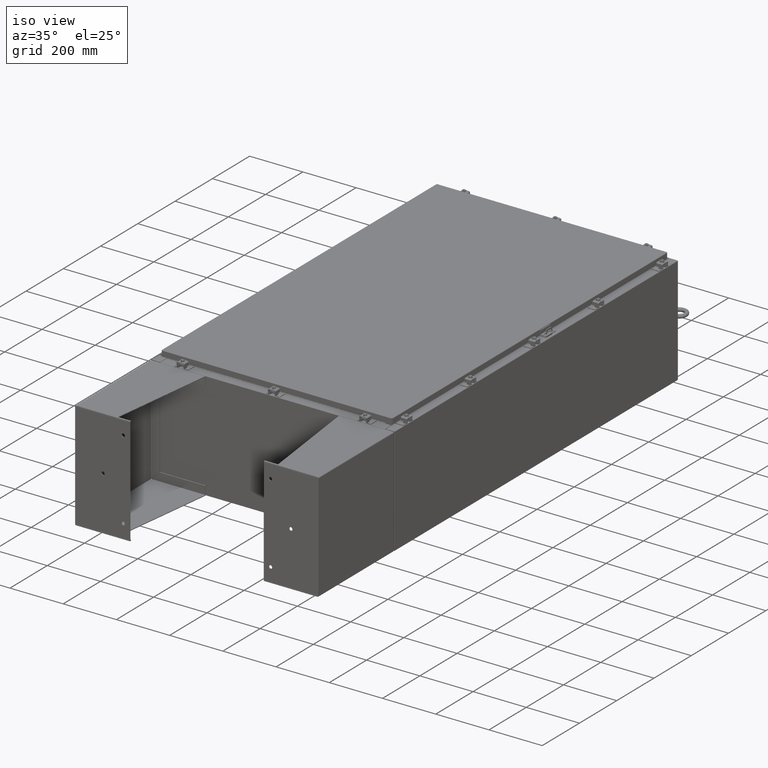
[diagram: clean part render]
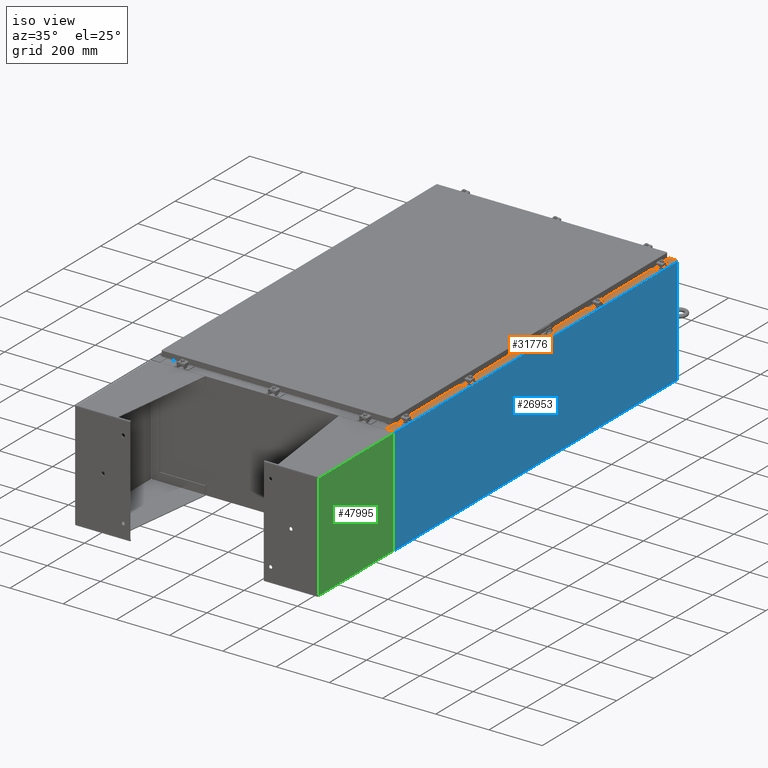
[diagram: same view with three faces highlighted in distinct colors, each labeled with its STEP entity id]
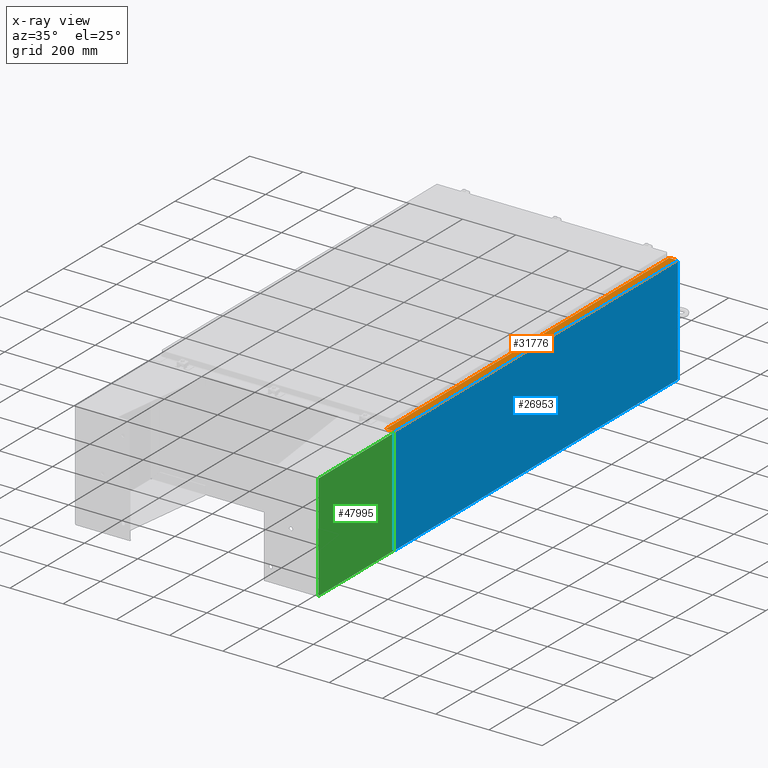
[diagram: x-ray of the same camera — body ghosted, the three highlighted faces saturated]
A machine part, iso view with three faces highlighted in distinct colors.
The next image is the same camera in x-ray (body ghosted, the three faces saturated) — at least one of them is partly hidden behind the body in this view.
Their STEP definitions:

[orange] entity #31776 — the highlighted planar face has unit normal (-0, -0, -1).
#130 = EDGE_CURVE ( 'NONE', #24378, #47018, #66243, .T. ) ;
#217 = CARTESIAN_POINT ( 'NONE',  ( 16.75005000000005500, 28.59374999999996800, 15.92530000000000500 ) ) ;
#399 = DIRECTION ( 'NONE',  ( 1.000000000000000000, 0.0000000000000000000, 0.0000000000000000000 ) ) ;
#725 = AXIS2_PLACEMENT_3D ( 'NONE', #37675, #46185, #10859 ) ;
#1506 = EDGE_CURVE ( 'NONE', #15011, #4619, #30651, .T. ) ;
#1755 = EDGE_CURVE ( 'NONE', #8646, #22863, #57858, .T. ) ;
#1946 = LINE ( 'NONE', #7747, #56029 ) ;
#2578 = CARTESIAN_POINT ( 'NONE',  ( 16.69970000000005300, -28.63110000000000700, 15.92530000000000500 ) ) ;
#2807 = EDGE_CURVE ( 'NONE', #44078, #8646, #24848, .T. ) ;
#4619 = VERTEX_POINT ( 'NONE', #46013 ) ;
#4620 = VECTOR ( 'NONE', #25521, 39.37007874015748100 ) ;
#4806 = ORIENTED_EDGE ( 'NONE', *, *, #130, .T. ) ;
#4869 = ORIENTED_EDGE ( 'NONE', *, *, #42134, .F. ) ;
#5190 = VERTEX_POINT ( 'NONE', #35418 ) ;
#6358 = CARTESIAN_POINT ( 'NONE',  ( 16.69970000000005300, 5.815213060988728800E-016, 15.92530000000000500 ) ) ;
#7747 = CARTESIAN_POINT ( 'NONE',  ( 17.91230000000005200, -29.92530000000001100, 15.92530000000000200 ) ) ;
#7956 = AXIS2_PLACEMENT_3D ( 'NONE', #63132, #31534, #399 ) ;
#8646 = VERTEX_POINT ( 'NONE', #39049 ) ;
#8961 = VECTOR ( 'NONE', #66947, 39.37007874015748100 ) ;
#9799 = LINE ( 'NONE', #6358, #63888 ) ;
#9889 = EDGE_CURVE ( 'NONE', #5190, #4619, #13994, .T. ) ;
#10638 = LINE ( 'NONE', #14634, #8961 ) ;
#10708 = DIRECTION ( 'NONE',  ( 0.0000000000000000000, -1.000000000000000000, 3.651556366905946600E-017 ) ) ;
#10859 = DIRECTION ( 'NONE',  ( 1.000000000000000000, 0.0000000000000000000, 0.0000000000000000000 ) ) ;
#12793 = ORIENTED_EDGE ( 'NONE', *, *, #1755, .F. ) ;
#13994 = LINE ( 'NONE', #53405, #26127 ) ;
#14634 = CARTESIAN_POINT ( 'NONE',  ( 16.75005000000005500, -28.59375000000001100, 15.92530000000000500 ) ) ;
#15011 = VERTEX_POINT ( 'NONE', #36234 ) ;
#16230 = CARTESIAN_POINT ( 'NONE',  ( 16.71270000000005500, -28.59375000000001100, 15.92530000000000500 ) ) ;
#17654 = CIRCLE ( 'NONE', #7956, 0.01867499999999949400 ) ;
#18477 = EDGE_CURVE ( 'NONE', #22863, #15011, #63248, .T. ) ;
#20433 = DIRECTION ( 'NONE',  ( 1.000000000000000000, 0.0000000000000000000, 0.0000000000000000000 ) ) ;
#21501 = EDGE_CURVE ( 'NONE', #38966, #32499, #35583, .T. ) ;
#21824 = LINE ( 'NONE', #52958, #48099 ) ;
#21907 = ORIENTED_EDGE ( 'NONE', *, *, #21501, .F. ) ;
#22863 = VERTEX_POINT ( 'NONE', #217 ) ;
#24378 = VERTEX_POINT ( 'NONE', #61593 ) ;
#24848 = LINE ( 'NONE', #58001, #29716 ) ;
#25521 = DIRECTION ( 'NONE',  ( -1.000000000000000000, 0.0000000000000000000, 0.0000000000000000000 ) ) ;
#26127 = VECTOR ( 'NONE', #10708, 39.37007874015748100 ) ;
#26750 = DIRECTION ( 'NONE',  ( -1.000000000000000000, 2.430865342914509000E-063, 5.349571789159789300E-015 ) ) ;
#29716 = VECTOR ( 'NONE', #61600, 39.37007874015748100 ) ;
#29761 = CARTESIAN_POINT ( 'NONE',  ( 17.91230000000005200, 29.92529999999999300, 15.92530000000000000 ) ) ;
#30229 = EDGE_LOOP ( 'NONE', ( #21907, #42857, #4806, #45995, #30779, #35106, #42465, #62025, #12793, #59959, #48576, #4869 ) ) ;
#30422 = PLANE ( 'NONE',  #34033 ) ;
#30494 = VERTEX_POINT ( 'NONE', #42284 ) ;
#30651 = LINE ( 'NONE', #34828, #4620 ) ;
#30779 = ORIENTED_EDGE ( 'NONE', *, *, #55361, .T. ) ;
#30890 = FACE_OUTER_BOUND ( 'NONE', #30229, .T. ) ;
#31534 = DIRECTION ( 'NONE',  ( 5.349571789159788500E-015, 3.651556366905946600E-017, 1.000000000000000000 ) ) ;
#31776 = ADVANCED_FACE ( 'NONE', ( #30890 ), #30422, .F. ) ;
#32499 = VERTEX_POINT ( 'NONE', #67377 ) ;
#33944 = VECTOR ( 'NONE', #20433, 39.37007874015748100 ) ;
#34033 = AXIS2_PLACEMENT_3D ( 'NONE', #61977, #67220, #35688 ) ;
#34811 = CARTESIAN_POINT ( 'NONE',  ( 16.69970000000005300, -28.63110000000000700, 15.92530000000000500 ) ) ;
#34828 = CARTESIAN_POINT ( 'NONE',  ( 16.75005000000005500, 28.63109999999996800, 15.92530000000000500 ) ) ;
#35106 = ORIENTED_EDGE ( 'NONE', *, *, #9889, .T. ) ;
#35281 = CARTESIAN_POINT ( 'NONE',  ( 16.71270000000005500, 28.59374999999996800, 15.92530000000000500 ) ) ;
#35418 = CARTESIAN_POINT ( 'NONE',  ( 16.69970000000005300, 29.92529999999999300, 15.92530000000000500 ) ) ;
#35583 = LINE ( 'NONE', #2578, #33944 ) ;
#35688 = DIRECTION ( 'NONE',  ( -1.000000000000000000, 0.0000000000000000000, 5.349571789159788500E-015 ) ) ;
#36234 = CARTESIAN_POINT ( 'NONE',  ( 16.75005000000005500, 28.63109999999996800, 15.92530000000000500 ) ) ;
#37675 = CARTESIAN_POINT ( 'NONE',  ( 16.75005000000005500, 28.61242499999997000, 15.92530000000000500 ) ) ;
#38966 = VERTEX_POINT ( 'NONE', #34811 ) ;
#39049 = CARTESIAN_POINT ( 'NONE',  ( 16.71270000000005500, 28.59374999999996800, 15.92530000000000500 ) ) ;
#39220 = DIRECTION ( 'NONE',  ( 3.651556366905947300E-017, -1.000000000000000000, 3.651556366905926900E-017 ) ) ;
#39396 = EDGE_CURVE ( 'NONE', #38966, #24378, #9799, .T. ) ;
#39690 = EDGE_CURVE ( 'NONE', #30494, #44078, #10638, .T. ) ;
#42134 = EDGE_CURVE ( 'NONE', #32499, #30494, #17654, .T. ) ;
#42284 = CARTESIAN_POINT ( 'NONE',  ( 16.75005000000005500, -28.59375000000001100, 15.92530000000000500 ) ) ;
#42465 = ORIENTED_EDGE ( 'NONE', *, *, #1506, .F. ) ;
#42857 = ORIENTED_EDGE ( 'NONE', *, *, #39396, .T. ) ;
#42896 = DIRECTION ( 'NONE',  ( 0.0000000000000000000, -1.000000000000000000, 3.651556366905946600E-017 ) ) ;
#44078 = VERTEX_POINT ( 'NONE', #16230 ) ;
#45995 = ORIENTED_EDGE ( 'NONE', *, *, #61992, .F. ) ;
#46013 = CARTESIAN_POINT ( 'NONE',  ( 16.69970000000005300, 28.63109999999997200, 15.92530000000000500 ) ) ;
#46185 = DIRECTION ( 'NONE',  ( 5.349571789159788500E-015, 3.651556366905946600E-017, 1.000000000000000000 ) ) ;
#47018 = VERTEX_POINT ( 'NONE', #57943 ) ;
#48099 = VECTOR ( 'NONE', #26750, 39.37007874015748100 ) ;
#48576 = ORIENTED_EDGE ( 'NONE', *, *, #39690, .F. ) ;
#52346 = VECTOR ( 'NONE', #66678, 39.37007874015748100 ) ;
#52958 = CARTESIAN_POINT ( 'NONE',  ( 8.545434926991848800E-014, 29.92529999999999300, 15.92530000000009600 ) ) ;
#53405 = CARTESIAN_POINT ( 'NONE',  ( 16.69970000000005300, 5.815213060988728800E-016, 15.92530000000000500 ) ) ;
#55361 = EDGE_CURVE ( 'NONE', #65394, #5190, #21824, .T. ) ;
#56029 = VECTOR ( 'NONE', #39220, 39.37007874015748100 ) ;
#56221 = VECTOR ( 'NONE', #66573, 39.37007874015748100 ) ;
#57858 = LINE ( 'NONE', #35281, #56221 ) ;
#57943 = CARTESIAN_POINT ( 'NONE',  ( 17.91230000000005200, -29.92530000000001100, 15.92530000000000200 ) ) ;
#58001 = CARTESIAN_POINT ( 'NONE',  ( 16.71270000000005500, -28.59375000000000400, 15.92530000000000500 ) ) ;
#59959 = ORIENTED_EDGE ( 'NONE', *, *, #2807, .F. ) ;
#60712 = CARTESIAN_POINT ( 'NONE',  ( 8.545434926991848800E-014, -29.92530000000001100, 15.92530000000009800 ) ) ;
#61593 = CARTESIAN_POINT ( 'NONE',  ( 16.69970000000005300, -29.92530000000001100, 15.92530000000000900 ) ) ;
#61600 = DIRECTION ( 'NONE',  ( -0.0000000000000000000, 1.000000000000000000, -0.0000000000000000000 ) ) ;
#61977 = CARTESIAN_POINT ( 'NONE',  ( 8.545434926991848800E-014, 5.815213060988761300E-016, 15.92530000000009600 ) ) ;
#61992 = EDGE_CURVE ( 'NONE', #65394, #47018, #1946, .T. ) ;
#62025 = ORIENTED_EDGE ( 'NONE', *, *, #18477, .F. ) ;
#63132 = CARTESIAN_POINT ( 'NONE',  ( 16.75005000000005500, -28.61242500000000900, 15.92530000000000500 ) ) ;
#63248 = CIRCLE ( 'NONE', #725, 0.01867499999999949400 ) ;
#63888 = VECTOR ( 'NONE', #42896, 39.37007874015748100 ) ;
#65394 = VERTEX_POINT ( 'NONE', #29761 ) ;
#66243 = LINE ( 'NONE', #60712, #52346 ) ;
#66573 = DIRECTION ( 'NONE',  ( 1.000000000000000000, 0.0000000000000000000, 0.0000000000000000000 ) ) ;
#66678 = DIRECTION ( 'NONE',  ( 1.000000000000000000, -2.430865342914509000E-063, -5.349571789159789300E-015 ) ) ;
#66947 = DIRECTION ( 'NONE',  ( -1.000000000000000000, 0.0000000000000000000, 0.0000000000000000000 ) ) ;
#67220 = DIRECTION ( 'NONE',  ( -5.349571789159788500E-015, -3.651556366905946600E-017, -1.000000000000000000 ) ) ;
#67377 = CARTESIAN_POINT ( 'NONE',  ( 16.75005000000005500, -28.63110000000000700, 15.92530000000000500 ) ) ;

[blue] entity #26953 — the highlighted planar face has unit normal (-1, 0, 0).
#941 = CARTESIAN_POINT ( 'NONE',  ( 17.99999999999999600, -29.92530000000001100, -6.201571169367082000E-014 ) ) ;
#6960 = FACE_OUTER_BOUND ( 'NONE', #11927, .T. ) ;
#8297 = DIRECTION ( 'NONE',  ( -1.000000000000000000, 0.0000000000000000000, 3.430827668758846700E-015 ) ) ;
#11927 = EDGE_LOOP ( 'NONE', ( #13271, #26413, #50434, #41435 ) ) ;
#12442 = LINE ( 'NONE', #63257, #38502 ) ;
#12884 = CARTESIAN_POINT ( 'NONE',  ( 17.99999999999999600, 29.92529999999999300, 0.01299999999999984700 ) ) ;
#13271 = ORIENTED_EDGE ( 'NONE', *, *, #42096, .T. ) ;
#13944 = VERTEX_POINT ( 'NONE', #39937 ) ;
#14542 = CARTESIAN_POINT ( 'NONE',  ( 18.00000000000005300, -29.92530000000001100, 15.83760000000000200 ) ) ;
#15851 = CARTESIAN_POINT ( 'NONE',  ( 17.99999999999999600, -29.92530000000001100, 0.01299999999999984700 ) ) ;
#16078 = DIRECTION ( 'NONE',  ( -0.0000000000000000000, -1.000000000000000000, -0.0000000000000000000 ) ) ;
#19049 = DIRECTION ( 'NONE',  ( -0.0000000000000000000, -1.000000000000000000, -0.0000000000000000000 ) ) ;
#26413 = ORIENTED_EDGE ( 'NONE', *, *, #38743, .T. ) ;
#26953 = ADVANCED_FACE ( 'NONE', ( #6960 ), #34217, .F. ) ;
#28744 = CARTESIAN_POINT ( 'NONE',  ( 17.99999999999999600, 0.0000000000000000000, -6.201571169367082000E-014 ) ) ;
#31575 = VERTEX_POINT ( 'NONE', #44547 ) ;
#32700 = LINE ( 'NONE', #15851, #59120 ) ;
#34217 = PLANE ( 'NONE',  #59900 ) ;
#34664 = VECTOR ( 'NONE', #19049, 39.37007874015748100 ) ;
#34679 = CARTESIAN_POINT ( 'NONE',  ( 18.00000000000005000, 29.92529999999999300, 15.83760000000000200 ) ) ;
#35097 = VECTOR ( 'NONE', #58640, 39.37007874015748100 ) ;
#38502 = VECTOR ( 'NONE', #52940, 39.37007874015748100 ) ;
#38743 = EDGE_CURVE ( 'NONE', #56008, #13944, #49233, .T. ) ;
#39937 = CARTESIAN_POINT ( 'NONE',  ( 17.99999999999999600, -29.92530000000001100, 0.01299999999999984800 ) ) ;
#41435 = ORIENTED_EDGE ( 'NONE', *, *, #66285, .T. ) ;
#42096 = EDGE_CURVE ( 'NONE', #31575, #56008, #50409, .T. ) ;
#44547 = CARTESIAN_POINT ( 'NONE',  ( 18.00000000000005000, 29.92529999999999300, 15.83760000000000200 ) ) ;
#44855 = DIRECTION ( 'NONE',  ( 3.430827668758846700E-015, 0.0000000000000000000, 1.000000000000000000 ) ) ;
#49233 = LINE ( 'NONE', #941, #35097 ) ;
#50409 = LINE ( 'NONE', #34679, #34664 ) ;
#50434 = ORIENTED_EDGE ( 'NONE', *, *, #63249, .F. ) ;
#50916 = VERTEX_POINT ( 'NONE', #12884 ) ;
#52940 = DIRECTION ( 'NONE',  ( 3.430827668758847500E-015, 0.0000000000000000000, 1.000000000000000000 ) ) ;
#56008 = VERTEX_POINT ( 'NONE', #14542 ) ;
#58640 = DIRECTION ( 'NONE',  ( -3.430827668758847500E-015, 0.0000000000000000000, -1.000000000000000000 ) ) ;
#59120 = VECTOR ( 'NONE', #16078, 39.37007874015748100 ) ;
#59900 = AXIS2_PLACEMENT_3D ( 'NONE', #28744, #8297, #44855 ) ;
#63249 = EDGE_CURVE ( 'NONE', #50916, #13944, #32700, .T. ) ;
#63257 = CARTESIAN_POINT ( 'NONE',  ( 17.99999999999999600, 29.92529999999998900, -6.201571169367082000E-014 ) ) ;
#66285 = EDGE_CURVE ( 'NONE', #50916, #31575, #12442, .T. ) ;

[green] entity #47995 — the highlighted planar face has unit normal (1, 0, -0).
#7666 = CARTESIAN_POINT ( 'NONE',  ( -7.856999999999997500, -7.999999999999999100, -0.1039999999999998600 ) ) ;
#8596 = AXIS2_PLACEMENT_3D ( 'NONE', #24523, #61229, #29723 ) ;
#8881 = VECTOR ( 'NONE', #49566, 39.37007874015748100 ) ;
#8975 = VERTEX_POINT ( 'NONE', #26110 ) ;
#9901 = DIRECTION ( 'NONE',  ( -0.0000000000000000000, -1.000000000000000000, -0.0000000000000000000 ) ) ;
#10757 = VERTEX_POINT ( 'NONE', #16793 ) ;
#10939 = DIRECTION ( 'NONE',  ( 1.000000000000000000, 0.0000000000000000000, 0.0000000000000000000 ) ) ;
#13052 = CARTESIAN_POINT ( 'NONE',  ( -7.856999999999997500, 7.856999999999998400, -0.1039999999999999000 ) ) ;
#13135 = EDGE_CURVE ( 'NONE', #10757, #8975, #54628, .T. ) ;
#14482 = DIRECTION ( 'NONE',  ( 1.000000000000000000, 0.0000000000000000000, 0.0000000000000000000 ) ) ;
#14650 = LINE ( 'NONE', #47530, #28374 ) ;
#16793 = CARTESIAN_POINT ( 'NONE',  ( 7.857000000000001100, 7.857000000000001100, -0.1039999999999998600 ) ) ;
#18636 = VERTEX_POINT ( 'NONE', #33433 ) ;
#22721 = ORIENTED_EDGE ( 'NONE', *, *, #13135, .T. ) ;
#24373 = EDGE_CURVE ( 'NONE', #49272, #10757, #60549, .T. ) ;
#24523 = CARTESIAN_POINT ( 'NONE',  ( 8.000000000000001800, 8.000000000000001800, -0.1039999999999999800 ) ) ;
#24986 = ORIENTED_EDGE ( 'NONE', *, *, #54686, .F. ) ;
#26110 = CARTESIAN_POINT ( 'NONE',  ( 7.857000000000001100, -7.999999999999989300, -0.1039999999999998600 ) ) ;
#27175 = EDGE_LOOP ( 'NONE', ( #67712, #56922, #22721, #24986 ) ) ;
#28374 = VECTOR ( 'NONE', #10939, 39.37007874015748100 ) ;
#29723 = DIRECTION ( 'NONE',  ( -1.000000000000000000, 0.0000000000000000000, -0.0000000000000000000 ) ) ;
#33433 = CARTESIAN_POINT ( 'NONE',  ( -7.856999999999997500, -8.000000000000000000, -0.1039999999999998600 ) ) ;
#40126 = EDGE_CURVE ( 'NONE', #18636, #49272, #50674, .T. ) ;
#43279 = VECTOR ( 'NONE', #14482, 39.37007874015748100 ) ;
#47530 = CARTESIAN_POINT ( 'NONE',  ( -7.999999999999997300, -7.999999999999999100, -0.1039999999999999800 ) ) ;
#47995 = ADVANCED_FACE ( 'NONE', ( #63055 ), #55993, .T. ) ;
#49272 = VERTEX_POINT ( 'NONE', #13052 ) ;
#49566 = DIRECTION ( 'NONE',  ( -0.0000000000000000000, 1.000000000000000000, -0.0000000000000000000 ) ) ;
#50674 = LINE ( 'NONE', #7666, #8881 ) ;
#52972 = VECTOR ( 'NONE', #9901, 39.37007874015748100 ) ;
#54628 = LINE ( 'NONE', #62937, #52972 ) ;
#54686 = EDGE_CURVE ( 'NONE', #18636, #8975, #14650, .T. ) ;
#55993 = PLANE ( 'NONE',  #8596 ) ;
#56922 = ORIENTED_EDGE ( 'NONE', *, *, #24373, .T. ) ;
#60549 = LINE ( 'NONE', #66821, #43279 ) ;
#61229 = DIRECTION ( 'NONE',  ( 0.0000000000000000000, 0.0000000000000000000, -1.000000000000000000 ) ) ;
#62937 = CARTESIAN_POINT ( 'NONE',  ( 7.857000000000001100, 8.000000000000001800, -0.1039999999999998600 ) ) ;
#63055 = FACE_OUTER_BOUND ( 'NONE', #27175, .T. ) ;
#66821 = CARTESIAN_POINT ( 'NONE',  ( -7.856999999999996700, 7.857000000000001100, -0.1039999999999998600 ) ) ;
#67712 = ORIENTED_EDGE ( 'NONE', *, *, #40126, .T. ) ;